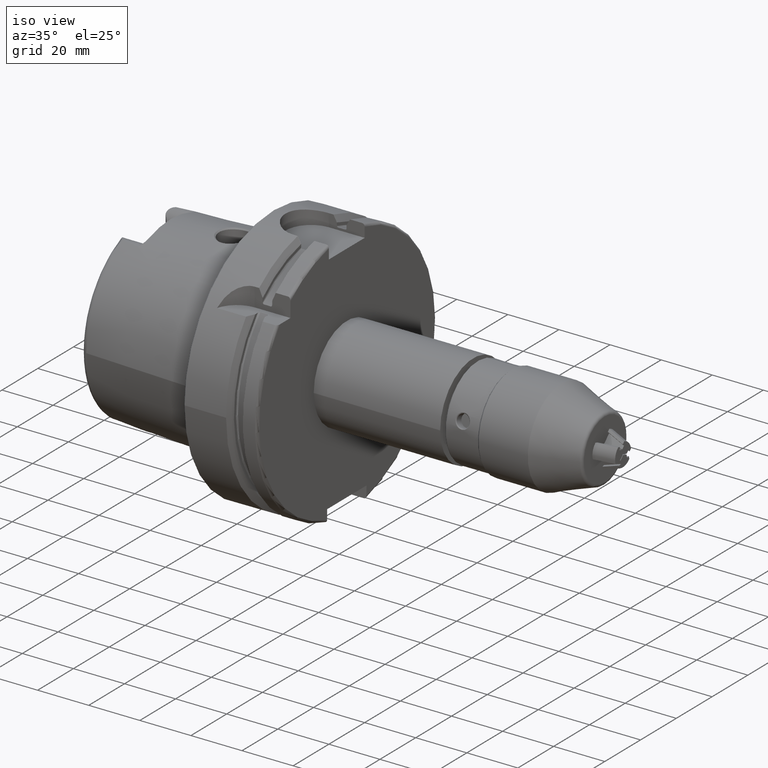
[diagram: clean part render]
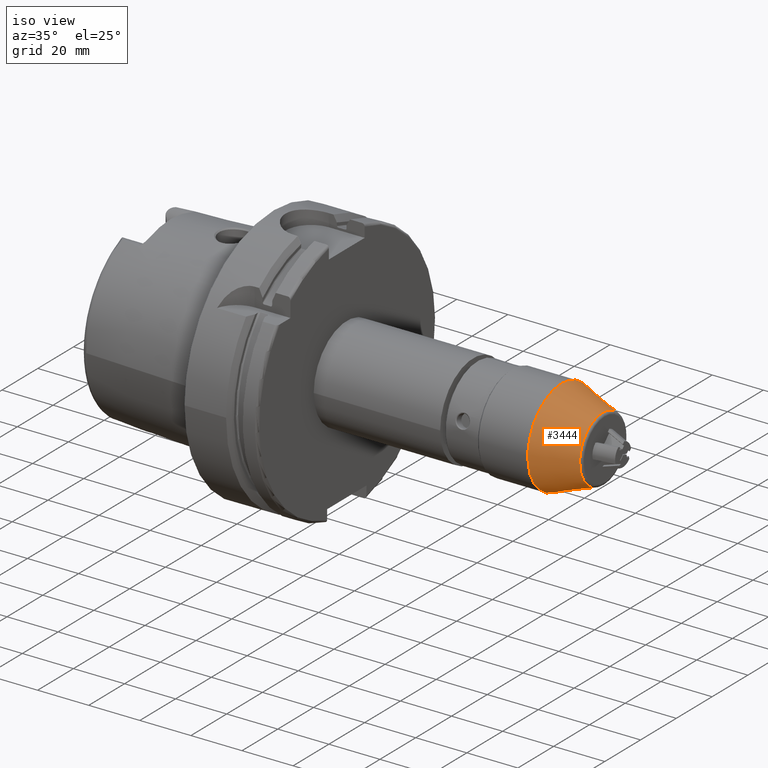
[diagram: same view with one face highlighted and labeled with its STEP entity id]
A machine part, iso view. The second image highlights one B-rep face of the part: STEP entity #3444.
In plain terms, the highlighted conical surface has half-angle 20 deg.
Its self-contained STEP definition (entity closure, byte-faithful):
#626=CONICAL_SURFACE('',#4038,18.75,0.34906585039886);
#874=FACE_OUTER_BOUND('',#1066,.T.);
#1066=EDGE_LOOP('',(#3142,#3143,#3144,#3145));
#1268=LINE('',#7183,#1445);
#1445=VECTOR('',#5016,18.75);
#1616=CIRCLE('',#4037,18.75);
#1617=CIRCLE('',#4039,12.8618623706949);
#1893=VERTEX_POINT('',#7178);
#1894=VERTEX_POINT('',#7182);
#2315=EDGE_CURVE('',#1893,#1893,#1616,.T.);
#2316=EDGE_CURVE('',#1893,#1894,#1268,.T.);
#2317=EDGE_CURVE('',#1894,#1894,#1617,.T.);
#3142=ORIENTED_EDGE('',*,*,#2315,.F.);
#3143=ORIENTED_EDGE('',*,*,#2316,.T.);
#3144=ORIENTED_EDGE('',*,*,#2317,.T.);
#3145=ORIENTED_EDGE('',*,*,#2316,.F.);
#3444=ADVANCED_FACE('',(#874),#626,.T.);
#4037=AXIS2_PLACEMENT_3D('',#7180,#5012,#5013);
#4038=AXIS2_PLACEMENT_3D('',#7181,#5014,#5015);
#4039=AXIS2_PLACEMENT_3D('',#7184,#5017,#5018);
#5012=DIRECTION('center_axis',(0.,-1.,0.));
#5013=DIRECTION('ref_axis',(-2.77555756156289E-17,0.,-1.));
#5014=DIRECTION('center_axis',(0.,-1.,0.));
#5015=DIRECTION('ref_axis',(-2.77555756156289E-17,0.,-1.));
#5016=DIRECTION('',(3.23924214266256E-17,0.93969262078591,-0.342020143325664));
#5017=DIRECTION('center_axis',(0.,-1.,0.));
#5018=DIRECTION('ref_axis',(-2.77555756156289E-17,0.,-1.));
#7178=CARTESIAN_POINT('',(-1.77579570560824E-15,20.,18.75));
#7180=CARTESIAN_POINT('Origin',(0.,20.,0.));
#7181=CARTESIAN_POINT('Origin',(0.,20.,0.));
#7182=CARTESIAN_POINT('',(-1.2181354647469E-15,36.1775251791571,12.8618623706949));
#7183=CARTESIAN_POINT('',(-1.77579570560824E-15,20.,18.75));
#7184=CARTESIAN_POINT('Origin',(0.,36.1775251791571,0.));